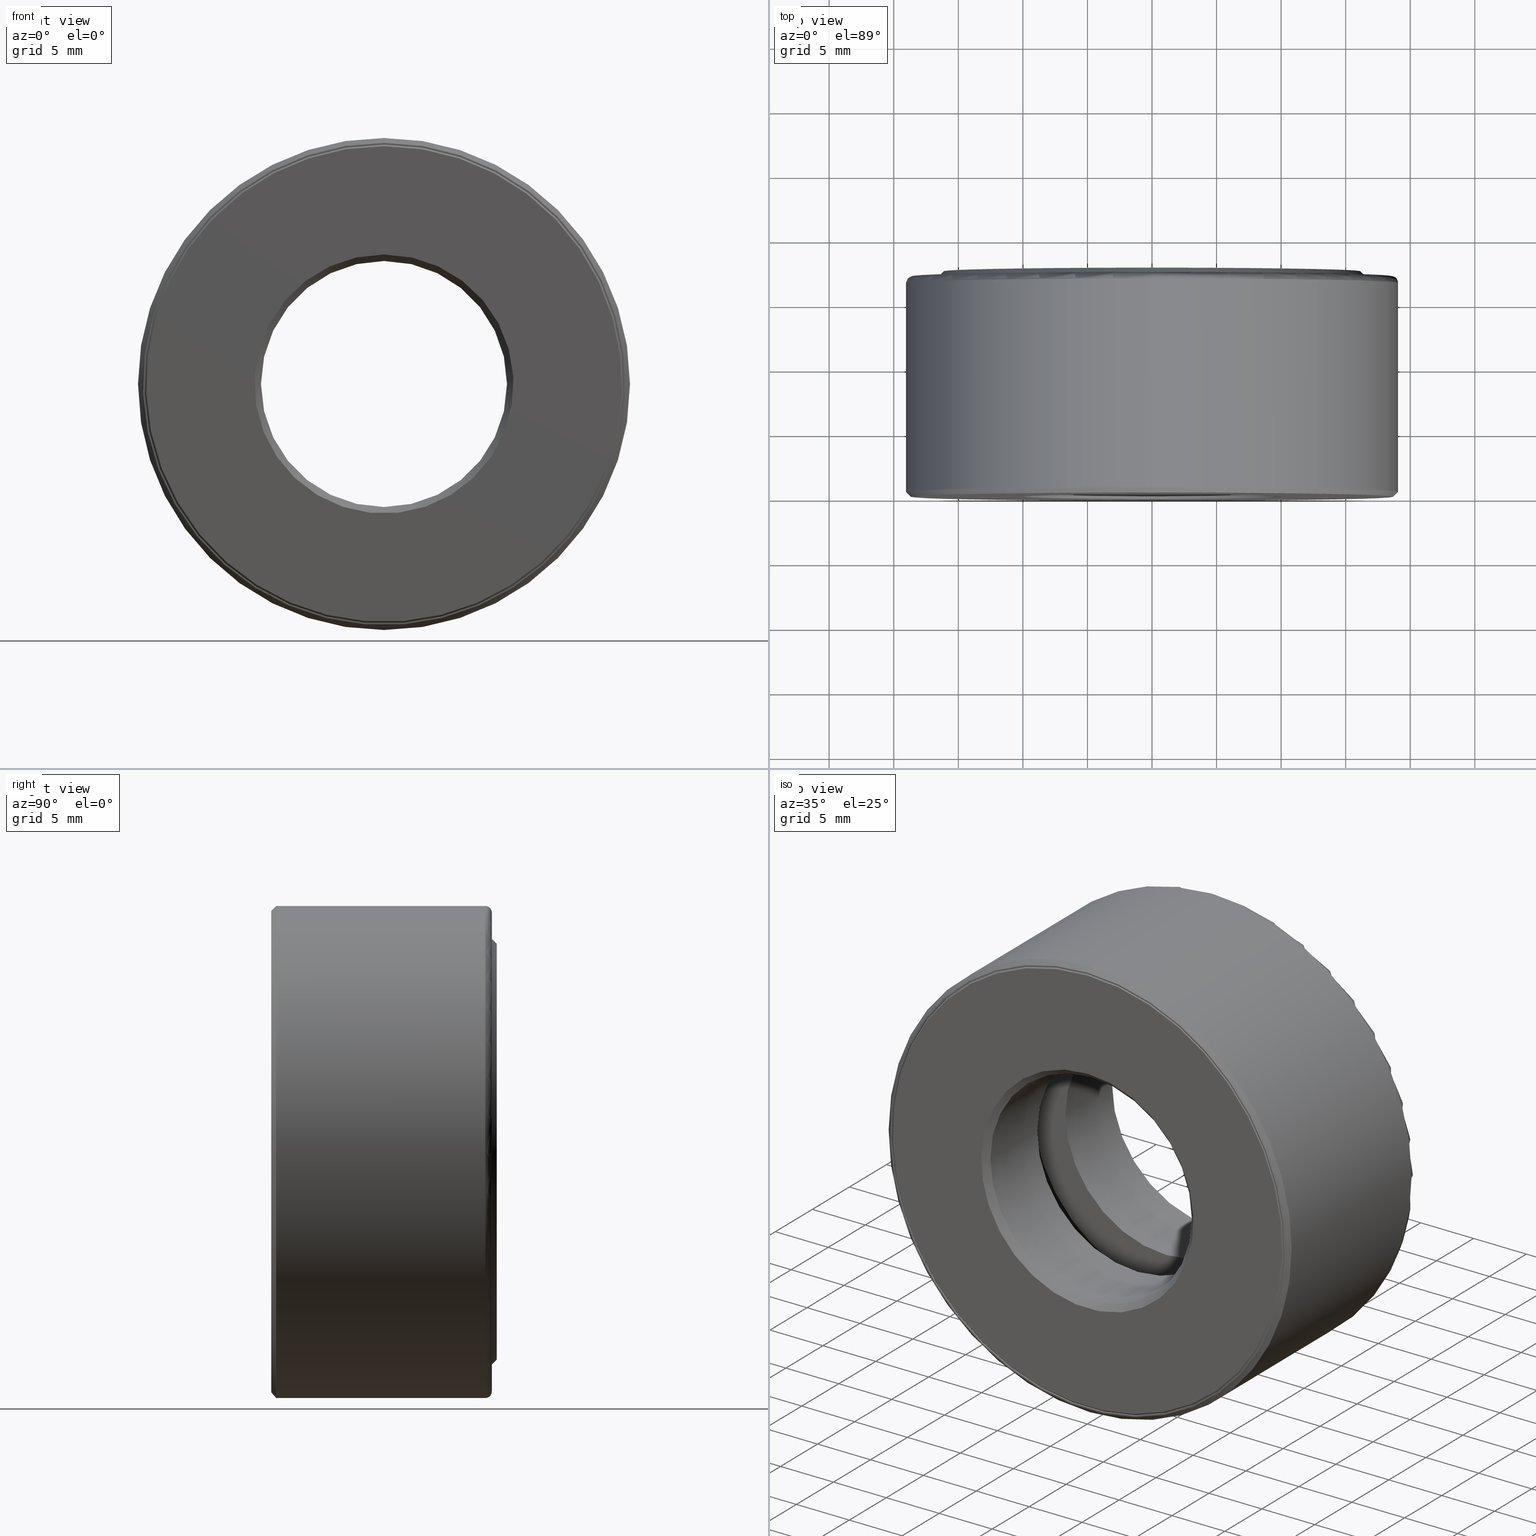
[diagram: canonical four-view strip — front | top / right | iso, engineering-drawing reading convention]
A machine part, canonical four-view strip (front | top / right | iso — engineering-drawing reading convention). The complete STEP part file that produces these views, byte-faithful:
ISO-10303-21;
HEADER;
FILE_DESCRIPTION (( 'STEP AP203' ),
    '1' );
FILE_NAME ('T-100-3.step',
    '2016-06-29T18:27:12',
    ( '' ),
    ( '' ),
    'SwSTEP 2.0',
    'SolidWorks 2016',
    '' );
FILE_SCHEMA (( 'CONFIG_CONTROL_DESIGN' ));
ENDSEC;

DATA;
#1 = FACE_BOUND ( 'NONE', #252, .T. ) ;
#2 = DIRECTION ( 'NONE',  ( -3.491481338843132600E-015, 0.0000000000000000000, -1.000000000000000000 ) ) ;
#3 = DIRECTION ( 'NONE',  ( 0.0000000000000000000, 0.0000000000000000000, 1.000000000000000000 ) ) ;
#4 = PRODUCT_DEFINITION ( 'UNKNOWN', '', #438, #329 ) ;
#5 = DIRECTION ( 'NONE',  ( -0.0000000000000000000, 1.000000000000000000, -0.0000000000000000000 ) ) ;
#6 = DIRECTION ( 'NONE',  ( 0.0000000000000000000, 0.0000000000000000000, -1.000000000000000000 ) ) ;
#7 = FACE_OUTER_BOUND ( 'NONE', #10, .T. ) ;
#8 = VERTEX_POINT ( 'NONE', #25 ) ;
#9 = FACE_OUTER_BOUND ( 'NONE', #244, .T. ) ;
#10 = EDGE_LOOP ( 'NONE', ( #103 ) ) ;
#11 = FACE_OUTER_BOUND ( 'NONE', #108, .T. ) ;
#12 = LOCAL_TIME ( 14, 27, 12.00000000000000000, #247 ) ;
#13 = CARTESIAN_POINT ( 'NONE',  ( 0.0000000000000000000, 0.6524999999999997500, 0.0000000000000000000 ) ) ;
#14 = AXIS2_PLACEMENT_3D ( 'NONE', #363, #49, #187 ) ;
#15 = DIRECTION ( 'NONE',  ( -0.0000000000000000000, 1.000000000000000000, -0.0000000000000000000 ) ) ;
#16 = ORIENTED_EDGE ( 'NONE', *, *, #469, .F. ) ;
#17 = FACE_OUTER_BOUND ( 'NONE', #340, .T. ) ;
#18 = DIRECTION ( 'NONE',  ( 0.0000000000000000000, 0.0000000000000000000, 1.000000000000000000 ) ) ;
#19 = VERTEX_POINT ( 'NONE', #581 ) ;
#20 = CARTESIAN_POINT ( 'NONE',  ( 0.0000000000000000000, 0.6524999999999997500, 0.0000000000000000000 ) ) ;
#21 = AXIS2_PLACEMENT_3D ( 'NONE', #365, #264, #313 ) ;
#22 = ORIENTED_EDGE ( 'NONE', *, *, #66, .T. ) ;
#23 = CARTESIAN_POINT ( 'NONE',  ( 0.0000000000000000000, 0.005000000000000276800, 0.0000000000000000000 ) ) ;
#24 = CARTESIAN_POINT ( 'NONE',  ( 0.0000000000000000000, -4.802076551362963400E-017, 0.7249999999999997600 ) ) ;
#25 = CARTESIAN_POINT ( 'NONE',  ( 0.0000000000000000000, 0.4187499999999998400, 0.3750000000000001100 ) ) ;
#26 = PLANE ( 'NONE',  #238 ) ;
#27 = APPROVAL ( #265, 'UNSPECIFIED' ) ;
#28 = EDGE_CURVE ( 'NONE', #204, #204, #454, .T. ) ;
#29 = EDGE_LOOP ( 'NONE', ( #164 ) ) ;
#30 = CIRCLE ( 'NONE', #337, 0.3750000000000000600 ) ;
#31 = DIRECTION ( 'NONE',  ( 0.0000000000000000000, 0.0000000000000000000, 1.000000000000000000 ) ) ;
#32 = ORIENTED_EDGE ( 'NONE', *, *, #545, .T. ) ;
#33 = AXIS2_PLACEMENT_3D ( 'NONE', #457, #554, #592 ) ;
#34 = COORDINATED_UNIVERSAL_TIME_OFFSET ( 5, 0, .BEHIND. ) ;
#35 = AXIS2_PLACEMENT_3D ( 'NONE', #415, #132, #140 ) ;
#36 = DIRECTION ( 'NONE',  ( 0.0000000000000000000, -1.000000000000000000, 0.0000000000000000000 ) ) ;
#37 = CARTESIAN_POINT ( 'NONE',  ( 0.0000000000000000000, 0.6524999999999997500, 0.0000000000000000000 ) ) ;
#38 = CARTESIAN_POINT ( 'NONE',  ( 0.0000000000000000000, 0.6875000000000000000, 0.0000000000000000000 ) ) ;
#39 = PERSON_AND_ORGANIZATION_ROLE ( 'classification_officer' ) ;
#40 = DIRECTION ( 'NONE',  ( 0.0000000000000000000, 0.0000000000000000000, -1.000000000000000000 ) ) ;
#41 = ORIENTED_EDGE ( 'NONE', *, *, #201, .F. ) ;
#42 = EDGE_LOOP ( 'NONE', ( #163 ) ) ;
#43 = DIRECTION ( 'NONE',  ( -0.0000000000000000000, 1.000000000000000000, -0.0000000000000000000 ) ) ;
#44 = DIRECTION ( 'NONE',  ( 0.0000000000000000000, 0.0000000000000000000, 1.000000000000000000 ) ) ;
#45 = ADVANCED_FACE ( 'NONE', ( #419, #105 ), #477, .T. ) ;
#46 = ADVANCED_FACE ( 'NONE', ( #11, #155 ), #443, .T. ) ;
#47 = CARTESIAN_POINT ( 'NONE',  ( 0.0000000000000000000, 0.02000000000000005900, 0.0000000000000000000 ) ) ;
#48 = DATE_TIME_ROLE ( 'classification_date' ) ;
#49 = DIRECTION ( 'NONE',  ( -0.0000000000000000000, 1.000000000000000000, -0.0000000000000000000 ) ) ;
#50 = ADVANCED_FACE ( 'NONE', ( #269, #382 ), #498, .T. ) ;
#51 = CARTESIAN_POINT ( 'NONE',  ( 0.0000000000000000000, 0.3437499999999998300, 0.0000000000000000000 ) ) ;
#52 = FACE_OUTER_BOUND ( 'NONE', #297, .T. ) ;
#53 = CARTESIAN_POINT ( 'NONE',  ( 2.363556502782875500E-016, 0.4187499999999998400, 0.0000000000000000000 ) ) ;
#54 = DIRECTION ( 'NONE',  ( -0.0000000000000000000, 1.000000000000000000, -0.0000000000000000000 ) ) ;
#55 = AXIS2_PLACEMENT_3D ( 'NONE', #191, #559, #318 ) ;
#56 = DIRECTION ( 'NONE',  ( -0.0000000000000000000, 1.000000000000000000, -0.0000000000000000000 ) ) ;
#57 = EDGE_LOOP ( 'NONE', ( #352 ) ) ;
#58 = EDGE_LOOP ( 'NONE', ( #241 ) ) ;
#59 = CARTESIAN_POINT ( 'NONE',  ( 0.0000000000000000000, 0.01499999999999997700, 0.0000000000000000000 ) ) ;
#60 = CIRCLE ( 'NONE', #582, 0.3950000000000001800 ) ;
#61 = DIRECTION ( 'NONE',  ( 6.982962677686265100E-015, -0.0000000000000000000, 1.000000000000000000 ) ) ;
#62 = CLOSED_SHELL ( 'NONE', ( #464, #463, #358, #505, #129, #550, #45, #46, #411, #596, #133, #50, #181, #257, #512, #593 ) ) ;
#63 = CARTESIAN_POINT ( 'NONE',  ( 0.0000000000000000000, -4.908789363615472800E-017, 0.0000000000000000000 ) ) ;
#64 = EDGE_LOOP ( 'NONE', ( #254 ) ) ;
#65 = CC_DESIGN_DATE_AND_TIME_ASSIGNMENT ( #151, #48, ( #588 ) ) ;
#66 = EDGE_CURVE ( 'NONE', #427, #427, #30, .T. ) ;
#67 = LOCAL_TIME ( 14, 27, 12.00000000000000000, #434 ) ;
#68 = PLANE ( 'NONE',  #461 ) ;
#69 = DIRECTION ( 'NONE',  ( -0.0000000000000000000, 1.000000000000000000, -0.0000000000000000000 ) ) ;
#70 = EDGE_LOOP ( 'NONE', ( #258 ) ) ;
#71 = CIRCLE ( 'NONE', #444, 0.7299999999999998700 ) ;
#72 = AXIS2_PLACEMENT_3D ( 'NONE', #413, #139, #470 ) ;
#73 = CARTESIAN_POINT ( 'NONE',  ( 0.0000000000000000000, 0.01499999999999997700, 0.7499999999999998900 ) ) ;
#74 = CARTESIAN_POINT ( 'NONE',  ( 0.0000000000000000000, 0.6875000000000000000, 0.0000000000000000000 ) ) ;
#75 = ORIENTED_EDGE ( 'NONE', *, *, #101, .T. ) ;
#76 = FACE_BOUND ( 'NONE', #540, .T. ) ;
#77 = PRODUCT_DEFINITION_SHAPE ( 'NONE', 'NONE',  #4 ) ;
#78 = AXIS2_PLACEMENT_3D ( 'NONE', #465, #422, #188 ) ;
#79 = EDGE_LOOP ( 'NONE', ( #314 ) ) ;
#80 = DATE_AND_TIME ( #572, #12 ) ;
#81 = DIRECTION ( 'NONE',  ( -0.0000000000000000000, 1.000000000000000000, 0.0000000000000000000 ) ) ;
#82 = ORGANIZATION ( 'UNSPECIFIED', 'UNSPECIFIED', '' ) ;
#83 = APPROVAL_ROLE ( '' ) ;
#84 = DIRECTION ( 'NONE',  ( -0.0000000000000000000, 1.000000000000000000, -0.0000000000000000000 ) ) ;
#85 = VERTEX_POINT ( 'NONE', #449 ) ;
#86 = PERSON ( 'UNSPECIFIED', 'UNSPECIFIED', 'UNSPECIFIED', ('UNSPECIFIED'), ('UNSPECIFIED'), ('UNSPECIFIED') ) ;
#87 = ADVANCED_FACE ( 'NONE', ( #557, #124 ), #475, .T. ) ;
#88 = APPROVAL_ROLE ( '' ) ;
#89 = PLANE ( 'NONE',  #35 ) ;
#90 = CARTESIAN_POINT ( 'NONE',  ( 0.0000000000000000000, 0.0000000000000000000, 0.0000000000000000000 ) ) ;
#91 = DIRECTION ( 'NONE',  ( -0.0000000000000000000, 1.000000000000000000, -0.0000000000000000000 ) ) ;
#92 = EDGE_LOOP ( 'NONE', ( #235 ) ) ;
#93 = PLANE ( 'NONE',  #228 ) ;
#94 = CONICAL_SURFACE ( 'NONE', #369, 0.6349999999999997900, 0.7853981633974490600 ) ;
#95 = ADVANCED_FACE ( 'NONE', ( #349, #372 ), #93, .T. ) ;
#96 = LOCAL_TIME ( 14, 27, 12.00000000000000000, #530 ) ;
#97 = DIRECTION ( 'NONE',  ( -1.000000000000000000, 0.0000000000000000000, 3.491481338843132600E-015 ) ) ;
#98 = APPROVAL_PERSON_ORGANIZATION ( #399, #27, #88 ) ;
#99 = CC_DESIGN_APPROVAL ( #27, ( #4 ) ) ;
#100 = PRODUCT_RELATED_PRODUCT_CATEGORY ( 'detail', '', ( #356 ) ) ;
#101 = EDGE_CURVE ( 'NONE', #531, #531, #240, .T. ) ;
#102 = DIRECTION ( 'NONE',  ( -0.0000000000000000000, 1.000000000000000000, -0.0000000000000000000 ) ) ;
#103 = ORIENTED_EDGE ( 'NONE', *, *, #239, .T. ) ;
#104 = FACE_OUTER_BOUND ( 'NONE', #203, .T. ) ;
#105 = FACE_OUTER_BOUND ( 'NONE', #223, .T. ) ;
#106 = LOCAL_TIME ( 14, 27, 12.00000000000000000, #510 ) ;
#107 = FACE_OUTER_BOUND ( 'NONE', #604, .T. ) ;
#108 = EDGE_LOOP ( 'NONE', ( #396 ) ) ;
#109 = SPHERICAL_SURFACE ( 'NONE', #435, 0.1250000000000000300 ) ;
#110 = DATE_AND_TIME ( #336, #606 ) ;
#111 = CARTESIAN_POINT ( 'NONE',  ( 0.0000000000000000000, 0.2687500000000001600, 0.0000000000000000000 ) ) ;
#112 = CIRCLE ( 'NONE', #376, 0.3750000000000001100 ) ;
#113 = EDGE_LOOP ( 'NONE', ( #442 ) ) ;
#114 = PERSON_AND_ORGANIZATION ( #86, #82 ) ;
#115 = EDGE_LOOP ( 'NONE', ( #416 ) ) ;
#116 = DIRECTION ( 'NONE',  ( 0.0000000000000000000, 0.0000000000000000000, 1.000000000000000000 ) ) ;
#117 = CIRCLE ( 'NONE', #486, 0.6349999999999997900 ) ;
#118 = DIRECTION ( 'NONE',  ( -0.0000000000000000000, 1.000000000000000000, -0.0000000000000000000 ) ) ;
#119 = CARTESIAN_POINT ( 'NONE',  ( 0.0000000000000000000, 0.6674999999999998700, 0.3750000000000001100 ) ) ;
#120 = CC_DESIGN_DATE_AND_TIME_ASSIGNMENT ( #110, #255, ( #4 ) ) ;
#121 = EDGE_CURVE ( 'NONE', #242, #242, #236, .T. ) ;
#122 = CARTESIAN_POINT ( 'NONE',  ( 0.0000000000000000000, 0.0000000000000000000, 0.3950000000000000200 ) ) ;
#123 = AXIS2_PLACEMENT_3D ( 'NONE', #506, #221, #599 ) ;
#124 = FACE_OUTER_BOUND ( 'NONE', #507, .T. ) ;
#125 = PLANE ( 'NONE',  #248 ) ;
#126 = VERTEX_POINT ( 'NONE', #441 ) ;
#127 = DIRECTION ( 'NONE',  ( -0.0000000000000000000, 1.000000000000000000, -0.0000000000000000000 ) ) ;
#128 = APPLICATION_PROTOCOL_DEFINITION ( 'international standard', 'config_control_design', 1994, #225 ) ;
#129 = ADVANCED_FACE ( 'NONE', ( #584, #104 ), #327, .F. ) ;
#130 = APPROVAL_STATUS ( 'not_yet_approved' ) ;
#131 = MANIFOLD_SOLID_BREP ( 'BALLS[3]', #538 ) ;
#132 = DIRECTION ( 'NONE',  ( -0.0000000000000000000, 1.000000000000000000, 0.0000000000000000000 ) ) ;
#133 = ADVANCED_FACE ( 'NONE', ( #17, #320 ), #571, .F. ) ;
#134 = ADVANCED_FACE ( 'NONE', ( #7, #387 ), #316, .F. ) ;
#135 = ORIENTED_EDGE ( 'NONE', *, *, #391, .F. ) ;
#136 = CIRCLE ( 'NONE', #234, 0.7229999999999997500 ) ;
#137 = MECHANICAL_CONTEXT ( 'NONE', #455, 'mechanical' ) ;
#138 = CARTESIAN_POINT ( 'NONE',  ( 0.0000000000000000000, 0.6674999999999998700, 0.0000000000000000000 ) ) ;
#139 = DIRECTION ( 'NONE',  ( -0.0000000000000000000, 1.000000000000000000, -0.0000000000000000000 ) ) ;
#140 = DIRECTION ( 'NONE',  ( 0.0000000000000000000, 0.0000000000000000000, 1.000000000000000000 ) ) ;
#141 = DIRECTION ( 'NONE',  ( 0.0000000000000000000, 0.0000000000000000000, 1.000000000000000000 ) ) ;
#142 = ORIENTED_EDGE ( 'NONE', *, *, #199, .F. ) ;
#143 = DIRECTION ( 'NONE',  ( 0.0000000000000000000, 0.0000000000000000000, 1.000000000000000000 ) ) ;
#144 = CYLINDRICAL_SURFACE ( 'NONE', #383, 0.7299999999999998700 ) ;
#145 = DIRECTION ( 'NONE',  ( 0.0000000000000000000, -1.000000000000000000, 0.0000000000000000000 ) ) ;
#146 = FACE_BOUND ( 'NONE', #497, .T. ) ;
#147 = CONICAL_SURFACE ( 'NONE', #293, 0.7350000000000001000, 0.7853981633974422800 ) ;
#148 = DIRECTION ( 'NONE',  ( 0.0000000000000000000, 0.0000000000000000000, 1.000000000000000000 ) ) ;
#149 = AXIS2_PLACEMENT_3D ( 'NONE', #482, #301, #173 ) ;
#150 = ORIENTED_EDGE ( 'NONE', *, *, #562, .F. ) ;
#151 = DATE_AND_TIME ( #577, #96 ) ;
#152 = AXIS2_PLACEMENT_3D ( 'NONE', #53, #368, #605 ) ;
#153 = AXIS2_PLACEMENT_3D ( 'NONE', #51, #15, #394 ) ;
#154 = ORIENTED_EDGE ( 'NONE', *, *, #121, .T. ) ;
#155 = FACE_OUTER_BOUND ( 'NONE', #64, .T. ) ;
#156 = ORIENTED_EDGE ( 'NONE', *, *, #220, .T. ) ;
#157 = DIMENSIONAL_EXPONENTS ( 1.000000000000000000, 0.0000000000000000000, 0.0000000000000000000, 0.0000000000000000000, 0.0000000000000000000, 0.0000000000000000000, 0.0000000000000000000 ) ;
#158 = VERTEX_POINT ( 'NONE', #398 ) ;
#159 = AXIS2_PLACEMENT_3D ( 'NONE', #47, #552, #40 ) ;
#160 = FACE_OUTER_BOUND ( 'NONE', #70, .T. ) ;
#161 = DIRECTION ( 'NONE',  ( -0.0000000000000000000, 1.000000000000000000, -0.0000000000000000000 ) ) ;
#162 = DIRECTION ( 'NONE',  ( 0.0000000000000000000, 0.0000000000000000000, 1.000000000000000000 ) ) ;
#163 = ORIENTED_EDGE ( 'NONE', *, *, #562, .T. ) ;
#164 = ORIENTED_EDGE ( 'NONE', *, *, #390, .T. ) ;
#165 = VERTEX_POINT ( 'NONE', #119 ) ;
#166 = CARTESIAN_POINT ( 'NONE',  ( 0.0000000000000000000, 0.6875000000000000000, 0.0000000000000000000 ) ) ;
#167 = DIRECTION ( 'NONE',  ( -0.0000000000000000000, 1.000000000000000000, -0.0000000000000000000 ) ) ;
#168 = DIRECTION ( 'NONE',  ( 0.0000000000000000000, -0.0000000000000000000, -1.000000000000000000 ) ) ;
#169 = EDGE_LOOP ( 'NONE', ( #393 ) ) ;
#170 = FACE_OUTER_BOUND ( 'NONE', #58, .T. ) ;
#171 = CARTESIAN_POINT ( 'NONE',  ( 0.0000000000000000000, 0.5995000000000001400, 0.7229999999999997500 ) ) ;
#172 = PERSON_AND_ORGANIZATION ( #86, #82 ) ;
#173 = DIRECTION ( 'NONE',  ( 0.0000000000000000000, 0.0000000000000000000, 1.000000000000000000 ) ) ;
#174 = LENGTH_MEASURE_WITH_UNIT ( LENGTH_MEASURE( 0.02539999999999999900 ), #184 );
#175 = CARTESIAN_POINT ( 'NONE',  ( 0.0000000000000000000, 0.4187499999999999600, 0.6960000000000001700 ) ) ;
#176 = EDGE_LOOP ( 'NONE', ( #516 ) ) ;
#177 = EDGE_LOOP ( 'NONE', ( #433 ) ) ;
#178 = VERTEX_POINT ( 'NONE', #73 ) ;
#179 = ADVANCED_FACE ( 'NONE', ( ), #539, .T. ) ;
#180 = FACE_OUTER_BOUND ( 'NONE', #115, .T. ) ;
#181 = ADVANCED_FACE ( 'NONE', ( #52, #397 ), #89, .F. ) ;
#182 = SECURITY_CLASSIFICATION_LEVEL ( 'unclassified' ) ;
#183 = DIRECTION ( 'NONE',  ( -0.0000000000000000000, 1.000000000000000000, -0.0000000000000000000 ) ) ;
#184 =( LENGTH_UNIT ( ) NAMED_UNIT ( * ) SI_UNIT ( $, .METRE. ) );
#185 = DIRECTION ( 'NONE',  ( 0.0000000000000000000, 0.0000000000000000000, 1.000000000000000000 ) ) ;
#186 = EDGE_LOOP ( 'NONE', ( #290 ) ) ;
#187 = DIRECTION ( 'NONE',  ( 0.0000000000000000000, 0.0000000000000000000, 1.000000000000000000 ) ) ;
#188 = DIRECTION ( 'NONE',  ( 0.0000000000000000000, 0.0000000000000000000, 1.000000000000000000 ) ) ;
#189 = VERTEX_POINT ( 'NONE', #24 ) ;
#190 = EDGE_LOOP ( 'NONE', ( #41 ) ) ;
#191 = CARTESIAN_POINT ( 'NONE',  ( 0.0000000000000000000, -4.908789363615472800E-017, 0.0000000000000000000 ) ) ;
#192 = ORIENTED_EDGE ( 'NONE', *, *, #215, .F. ) ;
#193 = DIRECTION ( 'NONE',  ( 1.047444401652940000E-014, 0.0000000000000000000, 1.000000000000000000 ) ) ;
#194 = DIRECTION ( 'NONE',  ( 0.0000000000000000000, 0.0000000000000000000, 1.000000000000000000 ) ) ;
#195 = AXIS2_PLACEMENT_3D ( 'NONE', #350, #587, #306 ) ;
#196 = ORIENTED_EDGE ( 'NONE', *, *, #373, .T. ) ;
#197 = FACE_OUTER_BOUND ( 'NONE', #351, .T. ) ;
#198 = PERSON_AND_ORGANIZATION ( #86, #82 ) ;
#199 = EDGE_CURVE ( 'NONE', #8, #8, #202, .T. ) ;
#200 = DIRECTION ( 'NONE',  ( 0.0000000000000000000, -0.0000000000000000000, -1.000000000000000000 ) ) ;
#201 = EDGE_CURVE ( 'NONE', #85, #85, #298, .T. ) ;
#202 = CIRCLE ( 'NONE', #347, 0.3750000000000001100 ) ;
#203 = EDGE_LOOP ( 'NONE', ( #154 ) ) ;
#204 = VERTEX_POINT ( 'NONE', #206 ) ;
#205 = DIRECTION ( 'NONE',  ( -0.0000000000000000000, 1.000000000000000000, -0.0000000000000000000 ) ) ;
#206 = CARTESIAN_POINT ( 'NONE',  ( 0.0000000000000000000, -4.867964418107738000E-017, 0.7299999999999998700 ) ) ;
#207 = DIRECTION ( 'NONE',  ( 0.0000000000000000000, 0.0000000000000000000, 1.000000000000000000 ) ) ;
#208 = CARTESIAN_POINT ( 'NONE',  ( 0.0000000000000000000, 0.6524999999999997500, 0.7500000000000001100 ) ) ;
#209 = EDGE_LOOP ( 'NONE', ( #196 ) ) ;
#210 = FACE_OUTER_BOUND ( 'NONE', #29, .T. ) ;
#211 = VERTEX_POINT ( 'NONE', #175 ) ;
#212 = CARTESIAN_POINT ( 'NONE',  ( -8.910693387615342100E-034, -4.888376890861605100E-017, 0.0000000000000000000 ) ) ;
#213 = AXIS2_PLACEMENT_3D ( 'NONE', #490, #205, #334 ) ;
#214 = CC_DESIGN_APPROVAL ( #503, ( #438 ) ) ;
#215 = EDGE_CURVE ( 'NONE', #440, #440, #488, .T. ) ;
#216 = DIRECTION ( 'NONE',  ( 0.0000000000000000000, 0.0000000000000000000, 1.000000000000000000 ) ) ;
#217 = CIRCLE ( 'NONE', #566, 0.7299999999999998700 ) ;
#218 = PERSON_AND_ORGANIZATION_ROLE ( 'design_owner' ) ;
#219 = DIRECTION ( 'NONE',  ( 0.0000000000000000000, 0.0000000000000000000, 1.000000000000000000 ) ) ;
#220 = EDGE_CURVE ( 'NONE', #126, #126, #117, .T. ) ;
#221 = DIRECTION ( 'NONE',  ( -0.0000000000000000000, 1.000000000000000000, -0.0000000000000000000 ) ) ;
#222 = ADVANCED_FACE ( 'NONE', ( #197, #245 ), #362, .T. ) ;
#223 = EDGE_LOOP ( 'NONE', ( #284 ) ) ;
#224 = CIRCLE ( 'NONE', #55, 0.7350000000000001000 ) ;
#225 = APPLICATION_CONTEXT ( 'configuration controlled 3d designs of mechanical parts and assemblies' ) ;
#226 = CARTESIAN_POINT ( 'NONE',  ( 0.0000000000000000000, 0.02000000000000005900, 0.0000000000000000000 ) ) ;
#227 = CONICAL_SURFACE ( 'NONE', #159, 0.3750000000000000600, 0.7853981633974466100 ) ;
#228 = AXIS2_PLACEMENT_3D ( 'NONE', #417, #513, #556 ) ;
#229 = EDGE_LOOP ( 'NONE', ( #192 ) ) ;
#230 = PERSON_AND_ORGANIZATION ( #86, #82 ) ;
#231 = VERTEX_POINT ( 'NONE', #171 ) ;
#232 = FACE_OUTER_BOUND ( 'NONE', #92, .T. ) ;
#233 = DIRECTION ( 'NONE',  ( 1.000000000000000000, 0.0000000000000000000, 0.0000000000000000000 ) ) ;
#234 = AXIS2_PLACEMENT_3D ( 'NONE', #283, #288, #194 ) ;
#235 = ORIENTED_EDGE ( 'NONE', *, *, #66, .F. ) ;
#236 = CIRCLE ( 'NONE', #78, 0.6700000000000000400 ) ;
#237 = CARTESIAN_POINT ( 'NONE',  ( 0.0000000000000000000, 0.6524999999999997500, 0.0000000000000000000 ) ) ;
#238 = AXIS2_PLACEMENT_3D ( 'NONE', #402, #541, #168 ) ;
#239 = EDGE_CURVE ( 'NONE', #165, #165, #112, .T. ) ;
#240 = CIRCLE ( 'NONE', #296, 0.4959999999999998300 ) ;
#241 = ORIENTED_EDGE ( 'NONE', *, *, #355, .F. ) ;
#242 = VERTEX_POINT ( 'NONE', #251 ) ;
#243 = EDGE_CURVE ( 'NONE', #211, #211, #529, .T. ) ;
#244 = EDGE_LOOP ( 'NONE', ( #135 ) ) ;
#245 = FACE_OUTER_BOUND ( 'NONE', #79, .T. ) ;
#246 = CARTESIAN_POINT ( 'NONE',  ( 0.0000000000000000000, 0.4187499999999999600, 0.4959999999999998300 ) ) ;
#247 = COORDINATED_UNIVERSAL_TIME_OFFSET ( 5, 0, .BEHIND. ) ;
#248 = AXIS2_PLACEMENT_3D ( 'NONE', #166, #544, #491 ) ;
#249 = CARTESIAN_POINT ( 'NONE',  ( 0.0000000000000000000, -4.908789363615472800E-017, 0.7350000000000001000 ) ) ;
#250 = AXIS2_PLACEMENT_3D ( 'NONE', #543, #451, #219 ) ;
#251 = CARTESIAN_POINT ( 'NONE',  ( 0.0000000000000000000, 0.6724999999999998800, 0.6700000000000000400 ) ) ;
#252 = EDGE_LOOP ( 'NONE', ( #16 ) ) ;
#253 = FACE_OUTER_BOUND ( 'NONE', #42, .T. ) ;
#254 = ORIENTED_EDGE ( 'NONE', *, *, #273, .T. ) ;
#255 = DATE_TIME_ROLE ( 'creation_date' ) ;
#256 = DIRECTION ( 'NONE',  ( 0.0000000000000000000, 0.0000000000000000000, 1.000000000000000000 ) ) ;
#257 = ADVANCED_FACE ( 'NONE', ( #418, #564 ), #227, .F. ) ;
#258 = ORIENTED_EDGE ( 'NONE', *, *, #263, .F. ) ;
#259 =( NAMED_UNIT ( * ) PLANE_ANGLE_UNIT ( ) SI_UNIT ( $, .RADIAN. ) );
#260 = APPROVAL_PERSON_ORGANIZATION ( #114, #503, #312 ) ;
#261 = ADVANCED_FACE ( 'NONE', ( #253, #467 ), #341, .F. ) ;
#262 = ADVANCED_FACE ( 'NONE', ( ), #603, .T. ) ;
#263 = EDGE_CURVE ( 'NONE', #274, #274, #285, .T. ) ;
#264 = DIRECTION ( 'NONE',  ( -0.0000000000000000000, 1.000000000000000000, -0.0000000000000000000 ) ) ;
#265 = APPROVAL_STATUS ( 'not_yet_approved' ) ;
#266 = ADVANCED_FACE ( 'NONE', ( ), #109, .T. ) ;
#267 = EDGE_LOOP ( 'NONE', ( #22 ) ) ;
#268 = CARTESIAN_POINT ( 'NONE',  ( 0.0000000000000000000, 0.4187499999999999600, 0.0000000000000000000 ) ) ;
#269 = FACE_OUTER_BOUND ( 'NONE', #430, .T. ) ;
#270 = AXIS2_PLACEMENT_3D ( 'NONE', #13, #485, #324 ) ;
#271 = APPROVAL_DATE_TIME ( #80, #400 ) ;
#272 = CARTESIAN_POINT ( 'NONE',  ( -6.242768633851522400E-015, 0.3437499999999998300, -0.5959999999999999700 ) ) ;
#273 = EDGE_CURVE ( 'NONE', #178, #178, #589, .T. ) ;
#274 = VERTEX_POINT ( 'NONE', #294 ) ;
#275 = TOROIDAL_SURFACE ( 'NONE', #357, 0.5959999999999999700, 0.1250000000000000300 ) ;
#276 = DIRECTION ( 'NONE',  ( -0.0000000000000000000, 1.000000000000000000, -0.0000000000000000000 ) ) ;
#277 = CARTESIAN_POINT ( 'NONE',  ( 0.0000000000000000000, 0.2687500000000000400, 0.0000000000000000000 ) ) ;
#278 = MANIFOLD_SOLID_BREP ( 'Revolve2[2]', #445 ) ;
#279 = ORIENTED_EDGE ( 'NONE', *, *, #121, .F. ) ;
#280 = DIRECTION ( 'NONE',  ( 0.0000000000000000000, 0.0000000000000000000, 1.000000000000000000 ) ) ;
#281 = AXIS2_PLACEMENT_3D ( 'NONE', #90, #127, #502 ) ;
#282 = VERTEX_POINT ( 'NONE', #586 ) ;
#283 = CARTESIAN_POINT ( 'NONE',  ( 0.0000000000000000000, 0.5995000000000001400, 0.0000000000000000000 ) ) ;
#284 = ORIENTED_EDGE ( 'NONE', *, *, #401, .T. ) ;
#285 = CIRCLE ( 'NONE', #406, 0.4959999999999998300 ) ;
#286 = APPROVAL_DATE_TIME ( #342, #503 ) ;
#287 = FACE_BOUND ( 'NONE', #452, .T. ) ;
#288 = DIRECTION ( 'NONE',  ( -0.0000000000000000000, 1.000000000000000000, -0.0000000000000000000 ) ) ;
#289 = DIRECTION ( 'NONE',  ( -0.0000000000000000000, 1.000000000000000000, -0.0000000000000000000 ) ) ;
#290 = ORIENTED_EDGE ( 'NONE', *, *, #305, .F. ) ;
#291 = ORIENTED_EDGE ( 'NONE', *, *, #355, .T. ) ;
#292 = FACE_OUTER_BOUND ( 'NONE', #186, .T. ) ;
#293 = AXIS2_PLACEMENT_3D ( 'NONE', #63, #528, #574 ) ;
#294 = CARTESIAN_POINT ( 'NONE',  ( 0.0000000000000000000, 0.2687500000000000400, 0.4959999999999998300 ) ) ;
#295 = AXIS2_PLACEMENT_3D ( 'NONE', #354, #84, #504 ) ;
#296 = AXIS2_PLACEMENT_3D ( 'NONE', #268, #5, #3 ) ;
#297 = EDGE_LOOP ( 'NONE', ( #509 ) ) ;
#298 = CIRCLE ( 'NONE', #14, 0.6700000000000000400 ) ;
#299 = DIRECTION ( 'NONE',  ( 0.0000000000000000000, -0.0000000000000000000, -1.000000000000000000 ) ) ;
#300 = ORIENTED_EDGE ( 'NONE', *, *, #220, .F. ) ;
#301 = DIRECTION ( 'NONE',  ( -0.0000000000000000000, 1.000000000000000000, -0.0000000000000000000 ) ) ;
#302 = FACE_OUTER_BOUND ( 'NONE', #370, .T. ) ;
#303 = AXIS2_PLACEMENT_3D ( 'NONE', #237, #161, #432 ) ;
#304 = CC_DESIGN_PERSON_AND_ORGANIZATION_ASSIGNMENT ( #198, #590, ( #438 ) ) ;
#305 = EDGE_CURVE ( 'NONE', #560, #560, #224, .T. ) ;
#306 = DIRECTION ( 'NONE',  ( 0.0000000000000000000, 0.0000000000000000000, 1.000000000000000000 ) ) ;
#307 = EDGE_LOOP ( 'NONE', ( #518 ) ) ;
#308 = EDGE_LOOP ( 'NONE', ( #425 ) ) ;
#309 = ORIENTED_EDGE ( 'NONE', *, *, #522, .F. ) ;
#310 = DIRECTION ( 'NONE',  ( 1.000000000000000000, 0.0000000000000000000, 0.0000000000000000000 ) ) ;
#311 = CIRCLE ( 'NONE', #213, 0.6960000000000001700 ) ;
#312 = APPROVAL_ROLE ( '' ) ;
#313 = DIRECTION ( 'NONE',  ( 0.0000000000000000000, 0.0000000000000000000, 1.000000000000000000 ) ) ;
#314 = ORIENTED_EDGE ( 'NONE', *, *, #390, .F. ) ;
#315 = APPLICATION_PROTOCOL_DEFINITION ( 'international standard', 'config_control_design', 1994, #455 ) ;
#316 = CYLINDRICAL_SURFACE ( 'NONE', #72, 0.3750000000000001100 ) ;
#317 = CARTESIAN_POINT ( 'NONE',  ( 0.0000000000000000000, 0.0000000000000000000, 0.0000000000000000000 ) ) ;
#318 = DIRECTION ( 'NONE',  ( 0.0000000000000000000, 0.0000000000000000000, 1.000000000000000000 ) ) ;
#319 = ADVANCED_BREP_SHAPE_REPRESENTATION ( 'T-100-3', ( #575, #278, #478, #429, #403, #131, #344 ), #573 ) ;
#320 = FACE_OUTER_BOUND ( 'NONE', #583, .T. ) ;
#321 = DIRECTION ( 'NONE',  ( 0.0000000000000000000, 0.0000000000000000000, -1.000000000000000000 ) ) ;
#322 = FACE_BOUND ( 'NONE', #405, .T. ) ;
#323 = AXIS2_PLACEMENT_3D ( 'NONE', #436, #487, #200 ) ;
#324 = DIRECTION ( 'NONE',  ( 0.0000000000000000000, 0.0000000000000000000, 1.000000000000000000 ) ) ;
#325 = EDGE_LOOP ( 'NONE', ( #291 ) ) ;
#326 = AXIS2_PLACEMENT_3D ( 'NONE', #37, #508, #361 ) ;
#327 = CYLINDRICAL_SURFACE ( 'NONE', #424, 0.6700000000000000400 ) ;
#328 = PERSON_AND_ORGANIZATION ( #86, #82 ) ;
#329 = DESIGN_CONTEXT ( 'detailed design', #225, 'design' ) ;
#330 = SHAPE_DEFINITION_REPRESENTATION ( #77, #319 ) ;
#331 = CC_DESIGN_PERSON_AND_ORGANIZATION_ASSIGNMENT ( #493, #459, ( #438 ) ) ;
#332 = EDGE_CURVE ( 'NONE', #189, #189, #439, .T. ) ;
#333 = CIRCLE ( 'NONE', #481, 0.3750000000000001100 ) ;
#334 = DIRECTION ( 'NONE',  ( 0.0000000000000000000, 0.0000000000000000000, 1.000000000000000000 ) ) ;
#335 = CC_DESIGN_PERSON_AND_ORGANIZATION_ASSIGNMENT ( #230, #598, ( #4 ) ) ;
#336 = CALENDAR_DATE ( 2016, 29, 6 ) ;
#337 = AXIS2_PLACEMENT_3D ( 'NONE', #226, #183, #474 ) ;
#338 = DIRECTION ( 'NONE',  ( 0.0000000000000000000, 0.0000000000000000000, 1.000000000000000000 ) ) ;
#339 = CARTESIAN_POINT ( 'NONE',  ( 0.0000000000000000000, 0.6524999999999997500, 0.7299999999999998700 ) ) ;
#340 = EDGE_LOOP ( 'NONE', ( #555 ) ) ;
#341 = CONICAL_SURFACE ( 'NONE', #404, 0.3750000000000001100, 0.7853981633974482800 ) ;
#342 = DATE_AND_TIME ( #519, #106 ) ;
#343 = CARTESIAN_POINT ( 'NONE',  ( 0.0000000000000000000, 0.4187499999999998400, 0.7229999999999998600 ) ) ;
#344 = AXIS2_PLACEMENT_3D ( 'NONE', #499, #216, #310 ) ;
#345 = FACE_BOUND ( 'NONE', #176, .T. ) ;
#346 = CARTESIAN_POINT ( 'NONE',  ( 0.0000000000000000000, 0.005000000000000276800, 0.7299999999999998700 ) ) ;
#347 = AXIS2_PLACEMENT_3D ( 'NONE', #473, #515, #185 ) ;
#348 = DIRECTION ( 'NONE',  ( 0.0000000000000000000, 0.0000000000000000000, 1.000000000000000000 ) ) ;
#349 = FACE_BOUND ( 'NONE', #501, .T. ) ;
#350 = CARTESIAN_POINT ( 'NONE',  ( 0.0000000000000000000, 0.0000000000000000000, 0.0000000000000000000 ) ) ;
#351 = EDGE_LOOP ( 'NONE', ( #527 ) ) ;
#352 = ORIENTED_EDGE ( 'NONE', *, *, #569, .F. ) ;
#353 = CIRCLE ( 'NONE', #195, 0.3950000000000000200 ) ;
#354 = CARTESIAN_POINT ( 'NONE',  ( 0.0000000000000000000, 0.4187499999999998400, 0.0000000000000000000 ) ) ;
#355 = EDGE_CURVE ( 'NONE', #410, #410, #217, .T. ) ;
#356 = PRODUCT ( 'T-100-3', 'T-100-3', '', ( #137 ) ) ;
#357 = AXIS2_PLACEMENT_3D ( 'NONE', #395, #289, #162 ) ;
#358 = ADVANCED_FACE ( 'NONE', ( #170, #576 ), #144, .F. ) ;
#359 = DIRECTION ( 'NONE',  ( 0.0000000000000000000, 0.0000000000000000000, 1.000000000000000000 ) ) ;
#360 = ORIENTED_EDGE ( 'NONE', *, *, #201, .T. ) ;
#361 = DIRECTION ( 'NONE',  ( 0.0000000000000000000, 0.0000000000000000000, 1.000000000000000000 ) ) ;
#362 = CYLINDRICAL_SURFACE ( 'NONE', #123, 0.7229999999999998600 ) ;
#363 = CARTESIAN_POINT ( 'NONE',  ( 0.0000000000000000000, 0.6524999999999997500, 0.0000000000000000000 ) ) ;
#364 = ADVANCED_FACE ( 'NONE', ( #210, #76 ), #94, .T. ) ;
#365 = CARTESIAN_POINT ( 'NONE',  ( 0.0000000000000000000, 0.0000000000000000000, 0.0000000000000000000 ) ) ;
#366 = CARTESIAN_POINT ( 'NONE',  ( 2.080922877950507600E-015, 0.3437499999999998300, 0.5959999999999999700 ) ) ;
#367 = DIRECTION ( 'NONE',  ( -0.0000000000000000000, 1.000000000000000000, -0.0000000000000000000 ) ) ;
#368 = DIRECTION ( 'NONE',  ( 0.0000000000000000000, -1.000000000000000000, 0.0000000000000000000 ) ) ;
#369 = AXIS2_PLACEMENT_3D ( 'NONE', #565, #145, #321 ) ;
#370 = EDGE_LOOP ( 'NONE', ( #534 ) ) ;
#371 = CC_DESIGN_PERSON_AND_ORGANIZATION_ASSIGNMENT ( #172, #39, ( #588 ) ) ;
#372 = FACE_OUTER_BOUND ( 'NONE', #229, .T. ) ;
#373 = EDGE_CURVE ( 'NONE', #282, #282, #333, .T. ) ;
#374 = EDGE_LOOP ( 'NONE', ( #388 ) ) ;
#375 = PERSON_AND_ORGANIZATION ( #86, #82 ) ;
#376 = AXIS2_PLACEMENT_3D ( 'NONE', #138, #462, #256 ) ;
#377 = DIRECTION ( 'NONE',  ( 0.0000000000000000000, 0.0000000000000000000, 1.000000000000000000 ) ) ;
#378 = AXIS2_PLACEMENT_3D ( 'NONE', #212, #81, #348 ) ;
#379 = CARTESIAN_POINT ( 'NONE',  ( 0.0000000000000000000, 0.0000000000000000000, 0.0000000000000000000 ) ) ;
#380 = DIRECTION ( 'NONE',  ( 0.0000000000000000000, 0.0000000000000000000, 1.000000000000000000 ) ) ;
#381 = AXIS2_PLACEMENT_3D ( 'NONE', #366, #97, #2 ) ;
#382 = FACE_BOUND ( 'NONE', #374, .T. ) ;
#383 = AXIS2_PLACEMENT_3D ( 'NONE', #379, #276, #148 ) ;
#384 = CARTESIAN_POINT ( 'NONE',  ( 0.5959999999999999700, 0.3437499999999998300, -4.161845755901015200E-015 ) ) ;
#385 = ORIENTED_EDGE ( 'NONE', *, *, #373, .F. ) ;
#386 = PLANE ( 'NONE',  #323 ) ;
#387 = FACE_OUTER_BOUND ( 'NONE', #601, .T. ) ;
#388 = ORIENTED_EDGE ( 'NONE', *, *, #332, .T. ) ;
#389 = VERTEX_POINT ( 'NONE', #208 ) ;
#390 = EDGE_CURVE ( 'NONE', #231, #231, #136, .T. ) ;
#391 = EDGE_CURVE ( 'NONE', #472, #472, #431, .T. ) ;
#392 = EDGE_LOOP ( 'NONE', ( #156 ) ) ;
#393 = ORIENTED_EDGE ( 'NONE', *, *, #263, .T. ) ;
#394 = DIRECTION ( 'NONE',  ( 0.0000000000000000000, 0.0000000000000000000, 1.000000000000000000 ) ) ;
#395 = CARTESIAN_POINT ( 'NONE',  ( 0.0000000000000000000, 0.3437499999999998300, 0.0000000000000000000 ) ) ;
#396 = ORIENTED_EDGE ( 'NONE', *, *, #401, .F. ) ;
#397 = FACE_BOUND ( 'NONE', #307, .T. ) ;
#398 = CARTESIAN_POINT ( 'NONE',  ( 0.0000000000000000000, 0.6724999999999998800, 0.7299999999999999800 ) ) ;
#399 = PERSON_AND_ORGANIZATION ( #86, #82 ) ;
#400 = APPROVAL ( #130, 'UNSPECIFIED' ) ;
#401 = EDGE_CURVE ( 'NONE', #389, #389, #517, .T. ) ;
#402 = CARTESIAN_POINT ( 'NONE',  ( -3.033818794616834100E-016, 0.2687500000000001000, 0.0000000000000000000 ) ) ;
#403 = MANIFOLD_SOLID_BREP ( 'BALLS[2]', #548 ) ;
#404 = AXIS2_PLACEMENT_3D ( 'NONE', #595, #91, #468 ) ;
#405 = EDGE_LOOP ( 'NONE', ( #558 ) ) ;
#406 = AXIS2_PLACEMENT_3D ( 'NONE', #277, #479, #280 ) ;
#407 = EDGE_LOOP ( 'NONE', ( #585 ) ) ;
#408 = ADVANCED_FACE ( 'NONE', ( ), #484, .T. ) ;
#409 = EDGE_LOOP ( 'NONE', ( #466 ) ) ;
#410 = VERTEX_POINT ( 'NONE', #537 ) ;
#411 = ADVANCED_FACE ( 'NONE', ( #526, #345 ), #147, .T. ) ;
#412 = AXIS2_PLACEMENT_3D ( 'NONE', #272, #521, #193 ) ;
#413 = CARTESIAN_POINT ( 'NONE',  ( 0.0000000000000000000, 0.0000000000000000000, 0.0000000000000000000 ) ) ;
#414 = APPROVAL_STATUS ( 'not_yet_approved' ) ;
#415 = CARTESIAN_POINT ( 'NONE',  ( -8.364257103796391400E-033, -2.401038275681482000E-017, 0.0000000000000000000 ) ) ;
#416 = ORIENTED_EDGE ( 'NONE', *, *, #469, .T. ) ;
#417 = CARTESIAN_POINT ( 'NONE',  ( -1.059223469765672300E-015, 0.4187499999999998400, 0.0000000000000000000 ) ) ;
#418 = FACE_OUTER_BOUND ( 'NONE', #57, .T. ) ;
#419 = FACE_OUTER_BOUND ( 'NONE', #177, .T. ) ;
#420 = CARTESIAN_POINT ( 'NONE',  ( 0.0000000000000000000, -4.802076551362963400E-017, 0.0000000000000000000 ) ) ;
#421 = TOROIDAL_SURFACE ( 'NONE', #153, 0.5959999999999999700, 0.1250000000000001900 ) ;
#422 = DIRECTION ( 'NONE',  ( -0.0000000000000000000, 1.000000000000000000, -0.0000000000000000000 ) ) ;
#423 = CARTESIAN_POINT ( 'NONE',  ( 0.0000000000000000000, 0.2687500000000000400, 0.0000000000000000000 ) ) ;
#424 = AXIS2_PLACEMENT_3D ( 'NONE', #317, #102, #143 ) ;
#425 = ORIENTED_EDGE ( 'NONE', *, *, #199, .T. ) ;
#426 = EDGE_LOOP ( 'NONE', ( #150 ) ) ;
#427 = VERTEX_POINT ( 'NONE', #536 ) ;
#428 = DIRECTION ( 'NONE',  ( -1.000000000000000000, 0.0000000000000000000, 6.982962677686265100E-015 ) ) ;
#429 = MANIFOLD_SOLID_BREP ( 'BALLS[1]', #523 ) ;
#430 = EDGE_LOOP ( 'NONE', ( #309 ) ) ;
#431 = CIRCLE ( 'NONE', #303, 0.7299999999999998700 ) ;
#432 = DIRECTION ( 'NONE',  ( 0.0000000000000000000, 0.0000000000000000000, 1.000000000000000000 ) ) ;
#433 = ORIENTED_EDGE ( 'NONE', *, *, #545, .F. ) ;
#434 = COORDINATED_UNIVERSAL_TIME_OFFSET ( 5, 0, .BEHIND. ) ;
#435 = AXIS2_PLACEMENT_3D ( 'NONE', #561, #6, #233 ) ;
#436 = CARTESIAN_POINT ( 'NONE',  ( 5.398412855127033600E-016, 0.2687500000000000400, 0.0000000000000000000 ) ) ;
#437 = UNCERTAINTY_MEASURE_WITH_UNIT (LENGTH_MEASURE( 1.000000000000000100E-005 ), #553, 'distance_accuracy_value', 'NONE');
#438 = PRODUCT_DEFINITION_FORMATION_WITH_SPECIFIED_SOURCE ( 'ANY', '', #356, .NOT_KNOWN. ) ;
#439 = CIRCLE ( 'NONE', #511, 0.7249999999999997600 ) ;
#440 = VERTEX_POINT ( 'NONE', #343 ) ;
#441 = CARTESIAN_POINT ( 'NONE',  ( 0.0000000000000000000, 0.6875000000000000000, 0.6349999999999997900 ) ) ;
#442 = ORIENTED_EDGE ( 'NONE', *, *, #273, .F. ) ;
#443 = CYLINDRICAL_SURFACE ( 'NONE', #281, 0.7499999999999998900 ) ;
#444 = AXIS2_PLACEMENT_3D ( 'NONE', #23, #167, #207 ) ;
#445 = CLOSED_SHELL ( 'NONE', ( #95, #546, #87, #134, #261, #597, #364, #222 ) ) ;
#446 = DATE_AND_TIME ( #542, #67 ) ;
#447 = CC_DESIGN_SECURITY_CLASSIFICATION ( #588, ( #438 ) ) ;
#448 = CIRCLE ( 'NONE', #149, 0.7299999999999999800 ) ;
#449 = CARTESIAN_POINT ( 'NONE',  ( 0.0000000000000000000, 0.6524999999999997500, 0.6700000000000000400 ) ) ;
#450 = CARTESIAN_POINT ( 'NONE',  ( 0.0000000000000000000, 0.6875000000000000000, 0.3950000000000001800 ) ) ;
#451 = DIRECTION ( 'NONE',  ( -0.0000000000000000000, 1.000000000000000000, -0.0000000000000000000 ) ) ;
#452 = EDGE_LOOP ( 'NONE', ( #279 ) ) ;
#453 = DIRECTION ( 'NONE',  ( -0.0000000000000000000, 1.000000000000000000, -0.0000000000000000000 ) ) ;
#454 = CIRCLE ( 'NONE', #600, 0.7299999999999998700 ) ;
#455 = APPLICATION_CONTEXT ( 'configuration controlled 3d designs of mechanical parts and assemblies' ) ;
#456 = VERTEX_POINT ( 'NONE', #450 ) ;
#457 = CARTESIAN_POINT ( 'NONE',  ( 0.0000000000000000000, 0.4187499999999999600, 0.0000000000000000000 ) ) ;
#458 = FACE_OUTER_BOUND ( 'NONE', #209, .T. ) ;
#459 = PERSON_AND_ORGANIZATION_ROLE ( 'design_supplier' ) ;
#460 = CARTESIAN_POINT ( 'NONE',  ( 0.0000000000000000000, -4.867964418107738000E-017, 0.0000000000000000000 ) ) ;
#461 = AXIS2_PLACEMENT_3D ( 'NONE', #20, #579, #116 ) ;
#462 = DIRECTION ( 'NONE',  ( -0.0000000000000000000, 1.000000000000000000, -0.0000000000000000000 ) ) ;
#463 = ADVANCED_FACE ( 'NONE', ( #1, #580 ), #386, .F. ) ;
#464 = ADVANCED_FACE ( 'NONE', ( #160, #180 ), #275, .F. ) ;
#465 = CARTESIAN_POINT ( 'NONE',  ( 0.0000000000000000000, 0.6724999999999998800, 0.0000000000000000000 ) ) ;
#466 = ORIENTED_EDGE ( 'NONE', *, *, #239, .F. ) ;
#467 = FACE_BOUND ( 'NONE', #409, .T. ) ;
#468 = DIRECTION ( 'NONE',  ( 0.0000000000000000000, 0.0000000000000000000, 1.000000000000000000 ) ) ;
#469 = EDGE_CURVE ( 'NONE', #19, #19, #311, .T. ) ;
#470 = DIRECTION ( 'NONE',  ( 0.0000000000000000000, 0.0000000000000000000, 1.000000000000000000 ) ) ;
#471 = APPROVAL_DATE_TIME ( #446, #27 ) ;
#472 = VERTEX_POINT ( 'NONE', #339 ) ;
#473 = CARTESIAN_POINT ( 'NONE',  ( 0.0000000000000000000, 0.4187499999999998400, 0.0000000000000000000 ) ) ;
#474 = DIRECTION ( 'NONE',  ( 0.0000000000000000000, 0.0000000000000000000, 1.000000000000000000 ) ) ;
#475 = PLANE ( 'NONE',  #152 ) ;
#476 = CC_DESIGN_APPROVAL ( #400, ( #588 ) ) ;
#477 = TOROIDAL_SURFACE ( 'NONE', #326, 0.7299999999999999800, 0.02000000000000005900 ) ;
#478 = MANIFOLD_SOLID_BREP ( 'Revolve3', #492 ) ;
#479 = DIRECTION ( 'NONE',  ( -0.0000000000000000000, 1.000000000000000000, -0.0000000000000000000 ) ) ;
#480 = VERTEX_POINT ( 'NONE', #346 ) ;
#481 = AXIS2_PLACEMENT_3D ( 'NONE', #111, #568, #18 ) ;
#482 = CARTESIAN_POINT ( 'NONE',  ( 0.0000000000000000000, 0.6724999999999998800, 0.0000000000000000000 ) ) ;
#483 = ORIENTED_EDGE ( 'NONE', *, *, #101, .F. ) ;
#484 = SPHERICAL_SURFACE ( 'NONE', #594, 0.1250000000000000300 ) ;
#485 = DIRECTION ( 'NONE',  ( -0.0000000000000000000, 1.000000000000000000, -0.0000000000000000000 ) ) ;
#486 = AXIS2_PLACEMENT_3D ( 'NONE', #38, #43, #359 ) ;
#487 = DIRECTION ( 'NONE',  ( 0.0000000000000000000, -1.000000000000000000, 0.0000000000000000000 ) ) ;
#488 = CIRCLE ( 'NONE', #295, 0.7229999999999998600 ) ;
#489 = CYLINDRICAL_SURFACE ( 'NONE', #551, 0.3750000000000001100 ) ;
#490 = CARTESIAN_POINT ( 'NONE',  ( 0.0000000000000000000, 0.2687499999999999900, 0.0000000000000000000 ) ) ;
#491 = DIRECTION ( 'NONE',  ( 0.0000000000000000000, 0.0000000000000000000, 1.000000000000000000 ) ) ;
#492 = CLOSED_SHELL ( 'NONE', ( #266 ) ) ;
#493 = PERSON_AND_ORGANIZATION ( #86, #82 ) ;
#494 = CARTESIAN_POINT ( 'NONE',  ( 0.0000000000000000000, 0.6724999999999998800, 0.0000000000000000000 ) ) ;
#495 = PLANE ( 'NONE',  #378 ) ;
#496 = PLANE ( 'NONE',  #533 ) ;
#497 = EDGE_LOOP ( 'NONE', ( #385 ) ) ;
#498 = CONICAL_SURFACE ( 'NONE', #250, 0.7249999999999997600, 0.7853981633974241900 ) ;
#499 = CARTESIAN_POINT ( 'NONE',  ( 0.0000000000000000000, 0.0000000000000000000, 0.0000000000000000000 ) ) ;
#500 = EDGE_LOOP ( 'NONE', ( #32 ) ) ;
#501 = EDGE_LOOP ( 'NONE', ( #524 ) ) ;
#502 = DIRECTION ( 'NONE',  ( 0.0000000000000000000, 0.0000000000000000000, 1.000000000000000000 ) ) ;
#503 = APPROVAL ( #414, 'UNSPECIFIED' ) ;
#504 = DIRECTION ( 'NONE',  ( 0.0000000000000000000, 0.0000000000000000000, 1.000000000000000000 ) ) ;
#505 = ADVANCED_FACE ( 'NONE', ( #9, #532 ), #68, .F. ) ;
#506 = CARTESIAN_POINT ( 'NONE',  ( 0.0000000000000000000, 0.0000000000000000000, 0.0000000000000000000 ) ) ;
#507 = EDGE_LOOP ( 'NONE', ( #483 ) ) ;
#508 = DIRECTION ( 'NONE',  ( -0.0000000000000000000, 1.000000000000000000, -0.0000000000000000000 ) ) ;
#509 = ORIENTED_EDGE ( 'NONE', *, *, #332, .F. ) ;
#510 = COORDINATED_UNIVERSAL_TIME_OFFSET ( 5, 0, .BEHIND. ) ;
#511 = AXIS2_PLACEMENT_3D ( 'NONE', #420, #367, #141 ) ;
#512 = ADVANCED_FACE ( 'NONE', ( #232, #458 ), #489, .F. ) ;
#513 = DIRECTION ( 'NONE',  ( 0.0000000000000000000, -1.000000000000000000, 0.0000000000000000000 ) ) ;
#514 = CC_DESIGN_PERSON_AND_ORGANIZATION_ASSIGNMENT ( #375, #218, ( #356 ) ) ;
#515 = DIRECTION ( 'NONE',  ( -0.0000000000000000000, 1.000000000000000000, -0.0000000000000000000 ) ) ;
#516 = ORIENTED_EDGE ( 'NONE', *, *, #305, .T. ) ;
#517 = CIRCLE ( 'NONE', #270, 0.7500000000000001100 ) ;
#518 = ORIENTED_EDGE ( 'NONE', *, *, #569, .T. ) ;
#519 = CALENDAR_DATE ( 2016, 29, 6 ) ;
#520 = FACE_OUTER_BOUND ( 'NONE', #392, .T. ) ;
#521 = DIRECTION ( 'NONE',  ( 1.000000000000000000, 0.0000000000000000000, -1.047444401652940000E-014 ) ) ;
#522 = EDGE_CURVE ( 'NONE', #480, #480, #71, .T. ) ;
#523 = CLOSED_SHELL ( 'NONE', ( #179 ) ) ;
#524 = ORIENTED_EDGE ( 'NONE', *, *, #243, .T. ) ;
#525 = APPROVAL_PERSON_ORGANIZATION ( #328, #400, #83 ) ;
#526 = FACE_OUTER_BOUND ( 'NONE', #113, .T. ) ;
#527 = ORIENTED_EDGE ( 'NONE', *, *, #215, .T. ) ;
#528 = DIRECTION ( 'NONE',  ( -0.0000000000000000000, 1.000000000000000000, -0.0000000000000000000 ) ) ;
#529 = CIRCLE ( 'NONE', #33, 0.6960000000000001700 ) ;
#530 = COORDINATED_UNIVERSAL_TIME_OFFSET ( 5, 0, .BEHIND. ) ;
#531 = VERTEX_POINT ( 'NONE', #246 ) ;
#532 = FACE_BOUND ( 'NONE', #547, .T. ) ;
#533 = AXIS2_PLACEMENT_3D ( 'NONE', #494, #36, #299 ) ;
#534 = ORIENTED_EDGE ( 'NONE', *, *, #243, .F. ) ;
#535 = CARTESIAN_POINT ( 'NONE',  ( 0.0000000000000000000, 0.0000000000000000000, 0.0000000000000000000 ) ) ;
#536 = CARTESIAN_POINT ( 'NONE',  ( 0.0000000000000000000, 0.02000000000000005900, 0.3750000000000000600 ) ) ;
#537 = CARTESIAN_POINT ( 'NONE',  ( 0.0000000000000000000, 0.2687500000000000400, 0.7299999999999998700 ) ) ;
#538 = CLOSED_SHELL ( 'NONE', ( #262 ) ) ;
#539 = SPHERICAL_SURFACE ( 'NONE', #381, 0.1250000000000000300 ) ;
#540 = EDGE_LOOP ( 'NONE', ( #300 ) ) ;
#541 = DIRECTION ( 'NONE',  ( 0.0000000000000000000, -1.000000000000000000, 0.0000000000000000000 ) ) ;
#542 = CALENDAR_DATE ( 2016, 29, 6 ) ;
#543 = CARTESIAN_POINT ( 'NONE',  ( 0.0000000000000000000, -4.802076551362963400E-017, 0.0000000000000000000 ) ) ;
#544 = DIRECTION ( 'NONE',  ( -0.0000000000000000000, 1.000000000000000000, 0.0000000000000000000 ) ) ;
#545 = EDGE_CURVE ( 'NONE', #158, #158, #448, .T. ) ;
#546 = ADVANCED_FACE ( 'NONE', ( #107, #302 ), #421, .F. ) ;
#547 = EDGE_LOOP ( 'NONE', ( #360 ) ) ;
#548 = CLOSED_SHELL ( 'NONE', ( #408 ) ) ;
#549 = FACE_OUTER_BOUND ( 'NONE', #500, .T. ) ;
#550 = ADVANCED_FACE ( 'NONE', ( #287, #549 ), #496, .F. ) ;
#551 = AXIS2_PLACEMENT_3D ( 'NONE', #535, #69, #338 ) ;
#552 = DIRECTION ( 'NONE',  ( 0.0000000000000000000, -1.000000000000000000, 0.0000000000000000000 ) ) ;
#553 =( CONVERSION_BASED_UNIT ( 'INCH', #174 ) LENGTH_UNIT ( ) NAMED_UNIT ( #157 ) );
#554 = DIRECTION ( 'NONE',  ( -0.0000000000000000000, 1.000000000000000000, -0.0000000000000000000 ) ) ;
#555 = ORIENTED_EDGE ( 'NONE', *, *, #28, .F. ) ;
#556 = DIRECTION ( 'NONE',  ( 0.0000000000000000000, -0.0000000000000000000, -1.000000000000000000 ) ) ;
#557 = FACE_BOUND ( 'NONE', #308, .T. ) ;
#558 = ORIENTED_EDGE ( 'NONE', *, *, #28, .T. ) ;
#559 = DIRECTION ( 'NONE',  ( -0.0000000000000000000, 1.000000000000000000, -0.0000000000000000000 ) ) ;
#560 = VERTEX_POINT ( 'NONE', #249 ) ;
#561 = CARTESIAN_POINT ( 'NONE',  ( -0.5959999999999999700, 0.3437499999999998300, 0.0000000000000000000 ) ) ;
#562 = EDGE_CURVE ( 'NONE', #456, #456, #60, .T. ) ;
#563 = AXIS2_PLACEMENT_3D ( 'NONE', #59, #56, #380 ) ;
#564 = FACE_BOUND ( 'NONE', #267, .T. ) ;
#565 = CARTESIAN_POINT ( 'NONE',  ( 0.0000000000000000000, 0.6875000000000000000, 0.0000000000000000000 ) ) ;
#566 = AXIS2_PLACEMENT_3D ( 'NONE', #423, #54, #377 ) ;
#567 = VERTEX_POINT ( 'NONE', #122 ) ;
#568 = DIRECTION ( 'NONE',  ( -0.0000000000000000000, 1.000000000000000000, -0.0000000000000000000 ) ) ;
#569 = EDGE_CURVE ( 'NONE', #567, #567, #353, .T. ) ;
#570 = ORIENTED_EDGE ( 'NONE', *, *, #522, .T. ) ;
#571 = CYLINDRICAL_SURFACE ( 'NONE', #21, 0.7299999999999998700 ) ;
#572 = CALENDAR_DATE ( 2016, 29, 6 ) ;
#573 =( GEOMETRIC_REPRESENTATION_CONTEXT ( 3 ) GLOBAL_UNCERTAINTY_ASSIGNED_CONTEXT ( ( #437 ) ) GLOBAL_UNIT_ASSIGNED_CONTEXT ( ( #553, #259, #602 ) ) REPRESENTATION_CONTEXT ( 'NONE', 'WORKASPACE' ) );
#574 = DIRECTION ( 'NONE',  ( 0.0000000000000000000, 0.0000000000000000000, 1.000000000000000000 ) ) ;
#575 = MANIFOLD_SOLID_BREP ( 'Revolve2[1]', #62 ) ;
#576 = FACE_OUTER_BOUND ( 'NONE', #407, .T. ) ;
#577 = CALENDAR_DATE ( 2016, 29, 6 ) ;
#578 = FACE_OUTER_BOUND ( 'NONE', #169, .T. ) ;
#579 = DIRECTION ( 'NONE',  ( -0.0000000000000000000, 1.000000000000000000, 0.0000000000000000000 ) ) ;
#580 = FACE_OUTER_BOUND ( 'NONE', #325, .T. ) ;
#581 = CARTESIAN_POINT ( 'NONE',  ( 0.0000000000000000000, 0.2687499999999999900, 0.6960000000000001700 ) ) ;
#582 = AXIS2_PLACEMENT_3D ( 'NONE', #74, #118, #31 ) ;
#583 = EDGE_LOOP ( 'NONE', ( #570 ) ) ;
#584 = FACE_OUTER_BOUND ( 'NONE', #190, .T. ) ;
#585 = ORIENTED_EDGE ( 'NONE', *, *, #391, .T. ) ;
#586 = CARTESIAN_POINT ( 'NONE',  ( 0.0000000000000000000, 0.2687500000000001600, 0.3750000000000001100 ) ) ;
#587 = DIRECTION ( 'NONE',  ( -0.0000000000000000000, 1.000000000000000000, -0.0000000000000000000 ) ) ;
#588 = SECURITY_CLASSIFICATION ( '', '', #182 ) ;
#589 = CIRCLE ( 'NONE', #563, 0.7499999999999998900 ) ;
#590 = PERSON_AND_ORGANIZATION_ROLE ( 'creator' ) ;
#591 = FACE_BOUND ( 'NONE', #426, .T. ) ;
#592 = DIRECTION ( 'NONE',  ( 0.0000000000000000000, 0.0000000000000000000, 1.000000000000000000 ) ) ;
#593 = ADVANCED_FACE ( 'NONE', ( #146, #578 ), #26, .F. ) ;
#594 = AXIS2_PLACEMENT_3D ( 'NONE', #384, #61, #428 ) ;
#595 = CARTESIAN_POINT ( 'NONE',  ( 0.0000000000000000000, 0.6674999999999998700, 0.0000000000000000000 ) ) ;
#596 = ADVANCED_FACE ( 'NONE', ( #292, #322 ), #495, .F. ) ;
#597 = ADVANCED_FACE ( 'NONE', ( #520, #591 ), #125, .T. ) ;
#598 = PERSON_AND_ORGANIZATION_ROLE ( 'creator' ) ;
#599 = DIRECTION ( 'NONE',  ( 0.0000000000000000000, 0.0000000000000000000, 1.000000000000000000 ) ) ;
#600 = AXIS2_PLACEMENT_3D ( 'NONE', #460, #453, #44 ) ;
#601 = EDGE_LOOP ( 'NONE', ( #142 ) ) ;
#602 =( NAMED_UNIT ( * ) SI_UNIT ( $, .STERADIAN. ) SOLID_ANGLE_UNIT ( ) );
#603 = SPHERICAL_SURFACE ( 'NONE', #412, 0.1250000000000000300 ) ;
#604 = EDGE_LOOP ( 'NONE', ( #75 ) ) ;
#605 = DIRECTION ( 'NONE',  ( 0.0000000000000000000, -0.0000000000000000000, -1.000000000000000000 ) ) ;
#606 = LOCAL_TIME ( 14, 27, 12.00000000000000000, #34 ) ;
ENDSEC;
END-ISO-10303-21;
